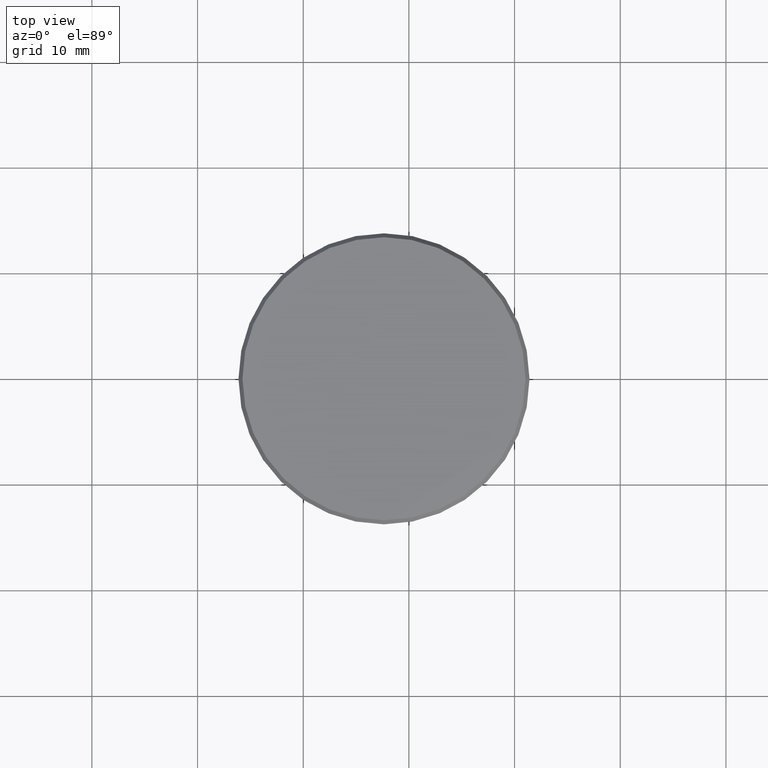
[diagram: clean part render]
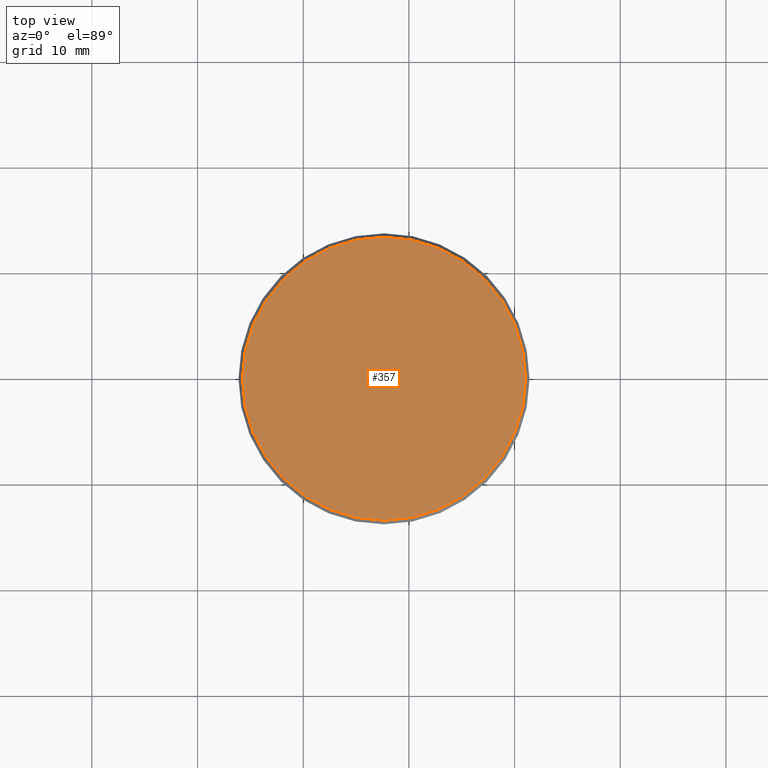
[diagram: same view with one face highlighted and labeled with its STEP entity id]
A machine part, top view. The second image highlights one B-rep face of the part: STEP entity #357.
In plain terms, the highlighted planar face has unit normal (0, 0, -1).
Its self-contained STEP definition (entity closure, byte-faithful):
#268 = DIRECTION ( 'NONE',  ( -1.000000000000000000, 0.0000000000000000000, 0.0000000000000000000 ) ) ;
#270 = ORIENTED_EDGE ( 'NONE', *, *, #2039, .T. ) ;
#303 = EDGE_CURVE ( 'NONE', #1424, #1731, #1660, .T. ) ;
#357 = ADVANCED_FACE ( 'NONE', ( #1972 ), #1061, .F. ) ;
#411 = DIRECTION ( 'NONE',  ( 0.0000000000000000000, 0.0000000000000000000, -1.000000000000000000 ) ) ;
#414 = CARTESIAN_POINT ( 'NONE',  ( -2.061298195062089400, 1.143924960471874900, 1.360553228420246400 ) ) ;
#491 = AXIS2_PLACEMENT_3D ( 'NONE', #731, #411, #1399 ) ;
#695 = CIRCLE ( 'NONE', #2038, 0.5272671395640213800 ) ;
#731 = CARTESIAN_POINT ( 'NONE',  ( -2.061298195062089400, 1.691924960471874900, 1.360553228420246400 ) ) ;
#862 = ORIENTED_EDGE ( 'NONE', *, *, #303, .T. ) ;
#940 = CARTESIAN_POINT ( 'NONE',  ( -1.534031055498068300, 1.143924960471874900, 1.360553228420246400 ) ) ;
#1061 = PLANE ( 'NONE',  #491 ) ;
#1241 = DIRECTION ( 'NONE',  ( -0.0000000000000000000, -0.0000000000000000000, 1.000000000000000000 ) ) ;
#1271 = CARTESIAN_POINT ( 'NONE',  ( -2.061298195062089400, 1.143924960471874900, 1.360553228420246400 ) ) ;
#1399 = DIRECTION ( 'NONE',  ( -1.000000000000000000, 0.0000000000000000000, -0.0000000000000000000 ) ) ;
#1424 = VERTEX_POINT ( 'NONE', #1941 ) ;
#1464 = AXIS2_PLACEMENT_3D ( 'NONE', #414, #1542, #1696 ) ;
#1542 = DIRECTION ( 'NONE',  ( -0.0000000000000000000, -0.0000000000000000000, 1.000000000000000000 ) ) ;
#1660 = CIRCLE ( 'NONE', #1464, 0.5272671395640213800 ) ;
#1696 = DIRECTION ( 'NONE',  ( -1.000000000000000000, 0.0000000000000000000, 0.0000000000000000000 ) ) ;
#1731 = VERTEX_POINT ( 'NONE', #940 ) ;
#1753 = EDGE_LOOP ( 'NONE', ( #862, #270 ) ) ;
#1941 = CARTESIAN_POINT ( 'NONE',  ( -2.588565334626110800, 1.143924960471874900, 1.360553228420246400 ) ) ;
#1972 = FACE_OUTER_BOUND ( 'NONE', #1753, .T. ) ;
#2038 = AXIS2_PLACEMENT_3D ( 'NONE', #1271, #1241, #268 ) ;
#2039 = EDGE_CURVE ( 'NONE', #1731, #1424, #695, .T. ) ;